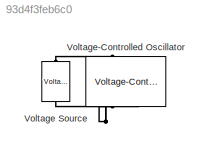
MODEL slx_93d4f3feb6c0
KIND model
CONFIG AbsTol = auto
CONFIG FixedStep = auto
CONFIG MaxStep = auto
CONFIG MinStep = auto
CONFIG RelTol = 1e-3
CONFIG SampleTimeConstraint = Unconstrained
CONFIG Solver = VariableStepAuto
CONFIG SolverMode = Auto
CONFIG SolverName = VariableStepAuto
CONFIG StartTime = 0.0
CONFIG StopTime = 10.0
BLOCK [Reference] Voltage Source  REF=elec_lib/Sources/Voltage Source
  Ports = [0, 0, 0, 0, 0, 1, 1]
  SourceBlock = elec_lib/Sources/Voltage Source
  SourceType = Voltage Source
BLOCK [Reference] Voltage-Controlled Oscillator  REF=elec_lib/Integrated Circuits/Voltage-Controlled
Oscillator
  Ports = [0, 0, 0, 0, 0, 2, 2]
  SourceBlock = elec_lib/Integrated Circuits/Voltage-Controlled\nOscillator
  SourceType = Voltage-Controlled\nOscillator
PLINE Voltage Source:LConn1 -- Voltage-Controlled Oscillator:LConn1
PNET net1: Voltage Source:RConn1 -- Voltage-Controlled Oscillator:RConn1 -- Voltage-Controlled Oscillator:RConn2
note: PNET lines group multi-terminal physical nets as a canonical sorted terminal list (undirected conserving connections); 2-terminal nets keep the pairwise PLINE form
